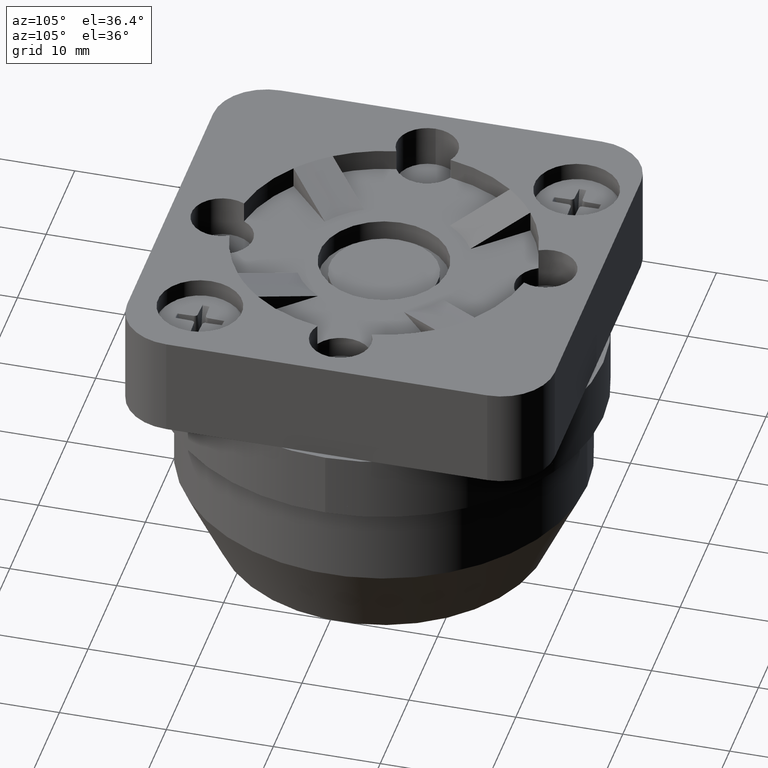
[diagram: clean part render]
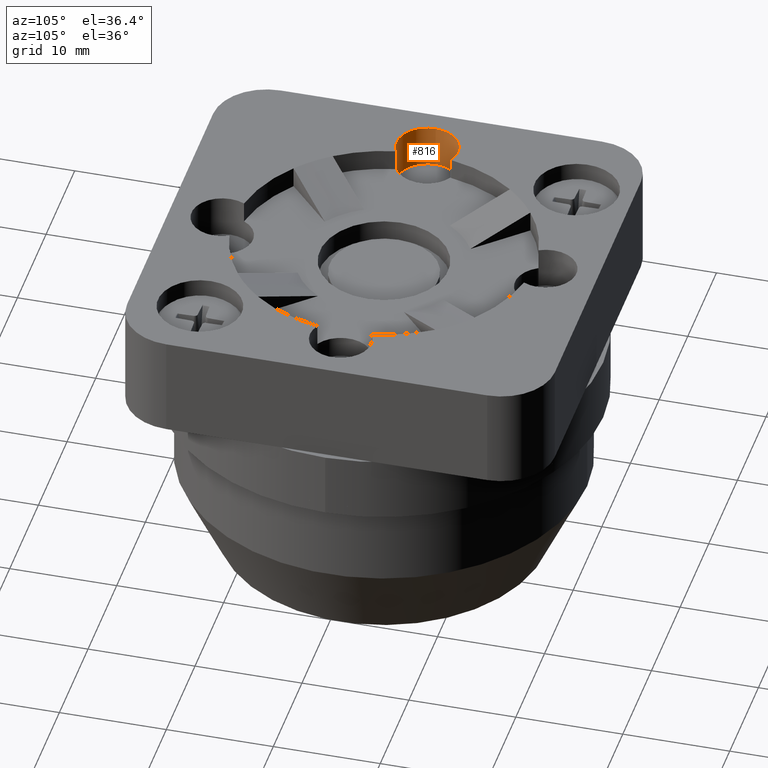
[diagram: same view with one face highlighted and labeled with its STEP entity id]
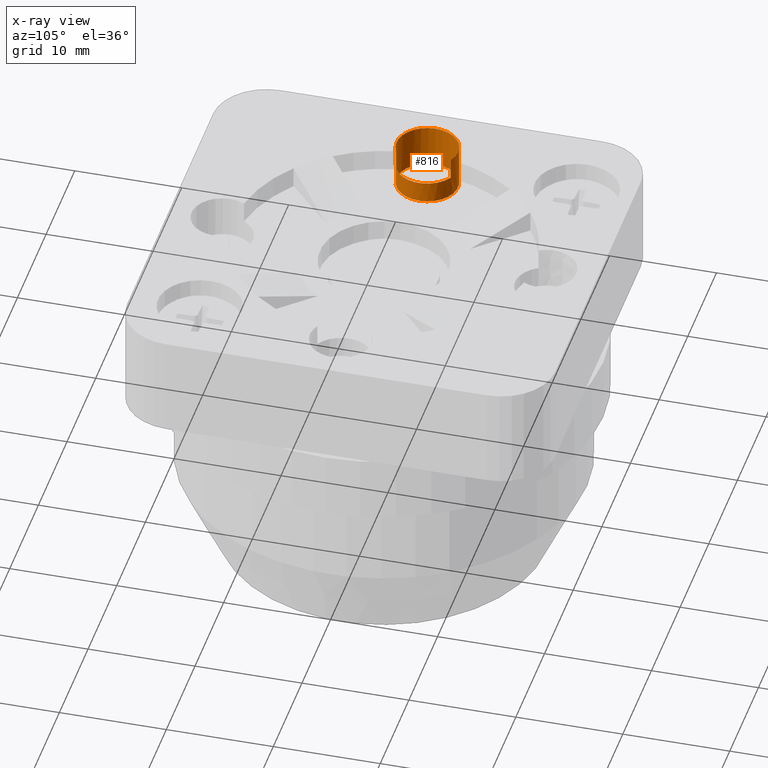
[diagram: x-ray of the same camera — body ghosted, the highlighted face saturated]
A machine part, auxiliary view. The second image highlights one B-rep face of the part: STEP entity #816.
The next image is the same camera in x-ray: the body ghosted, the highlighted face saturated — about 0% of this face is hidden behind the body in this view.
In plain terms, the highlighted cylindrical surface (bore or boss wall) has radius 2.875 mm, axis along (0, 0, -1).
Its self-contained STEP definition (entity closure, byte-faithful):
#508=CARTESIAN_POINT('',(-17.622078902673412,-11.248433853785135,9.500000000000000));
#509=VERTEX_POINT('',#508);
#517=CARTESIAN_POINT('',(-17.622078902673412,-6.178605222332361,9.500000000000000));
#518=VERTEX_POINT('',#517);
#519=CARTESIAN_POINT('',(-18.978483861351101,-8.713519538058748,9.500000000000000));
#520=DIRECTION('',(0.0,0.0,-1.0));
#521=DIRECTION('',(-1.0,0.0,0.0));
#522=AXIS2_PLACEMENT_3D('',#519,#520,#521);
#523=CIRCLE('',#522,2.875000000000000);
#524=EDGE_CURVE('',#509,#518,#523,.T.);
#774=CARTESIAN_POINT('',(-18.978483861351101,-8.713519538058748,7.500000000000000));
#775=DIRECTION('',(0.0,0.0,-1.0));
#776=DIRECTION('',(-1.0,0.0,0.0));
#777=AXIS2_PLACEMENT_3D('',#774,#775,#776);
#778=CYLINDRICAL_SURFACE('',#777,2.875000000000000);
#779=CARTESIAN_POINT('',(-21.853483861351105,-8.713519538058748,5.500000000000000));
#780=VERTEX_POINT('',#779);
#781=CARTESIAN_POINT('',(-18.978483861351101,-8.713519538058748,5.500000000000000));
#782=DIRECTION('',(0.0,0.0,-1.0));
#783=DIRECTION('',(-1.0,0.0,0.0));
#784=AXIS2_PLACEMENT_3D('',#781,#782,#783);
#785=CIRCLE('',#784,2.875000000000000);
#786=EDGE_CURVE('',#780,#780,#785,.T.);
#787=ORIENTED_EDGE('',*,*,#786,.T.);
#788=EDGE_LOOP('',(#787));
#789=FACE_OUTER_BOUND('',#788,.T.);
#790=CARTESIAN_POINT('',(-17.622078902673412,-6.178605222332361,7.500000000000000));
#791=VERTEX_POINT('',#790);
#792=CARTESIAN_POINT('',(-17.622078902673412,-6.178605222332361,9.500000000000000));
#793=DIRECTION('',(0.0,0.0,-1.0));
#794=VECTOR('',#793,2.0);
#795=LINE('',#792,#794);
#796=EDGE_CURVE('',#518,#791,#795,.T.);
#797=ORIENTED_EDGE('',*,*,#796,.F.);
#798=ORIENTED_EDGE('',*,*,#524,.F.);
#799=CARTESIAN_POINT('',(-17.622078902673412,-11.248433853785135,7.500000000000000));
#800=VERTEX_POINT('',#799);
#801=CARTESIAN_POINT('',(-17.622078902673412,-11.248433853785135,7.500000000000000));
#802=DIRECTION('',(0.0,0.0,1.0));
#803=VECTOR('',#802,2.0);
#804=LINE('',#801,#803);
#805=EDGE_CURVE('',#800,#509,#804,.T.);
#806=ORIENTED_EDGE('',*,*,#805,.F.);
#807=CARTESIAN_POINT('',(-18.978483861351101,-8.713519538058748,7.500000000000001));
#808=DIRECTION('',(0.0,0.0,-1.0));
#809=DIRECTION('',(-1.0,0.0,0.0));
#810=AXIS2_PLACEMENT_3D('',#807,#808,#809);
#811=CIRCLE('',#810,2.875000000000000);
#812=EDGE_CURVE('',#791,#800,#811,.T.);
#813=ORIENTED_EDGE('',*,*,#812,.F.);
#814=EDGE_LOOP('',(#797,#798,#806,#813));
#815=FACE_BOUND('',#814,.T.);
#816=ADVANCED_FACE('',(#789,#815),#778,.F.);